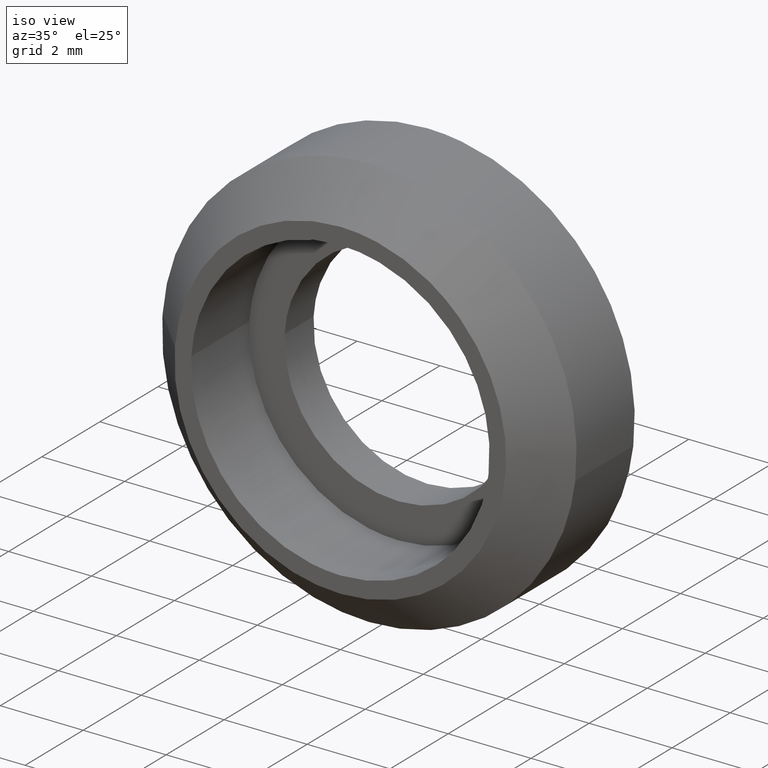
[diagram: clean part render]
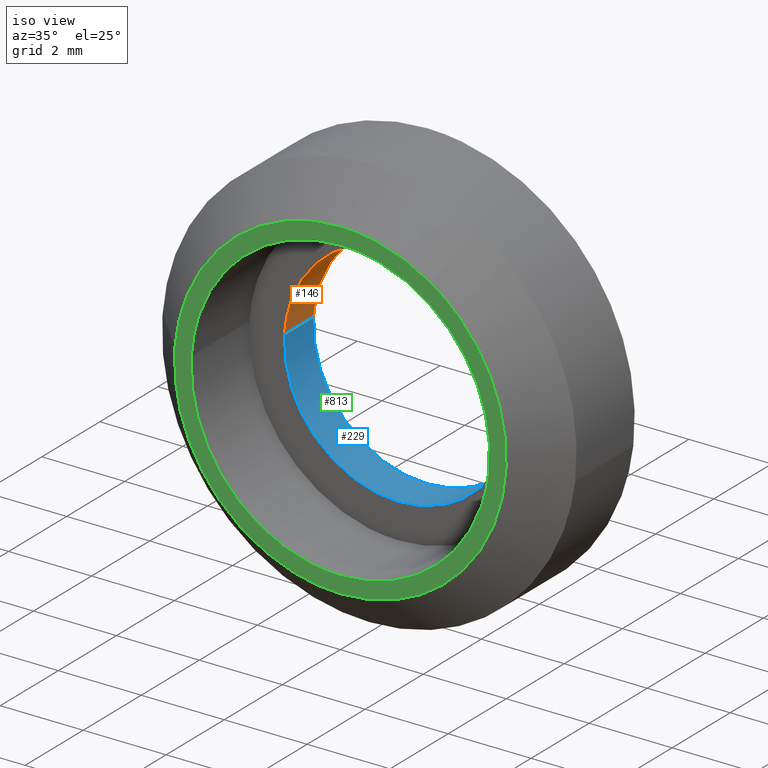
[diagram: same view with three faces highlighted in distinct colors, each labeled with its STEP entity id]
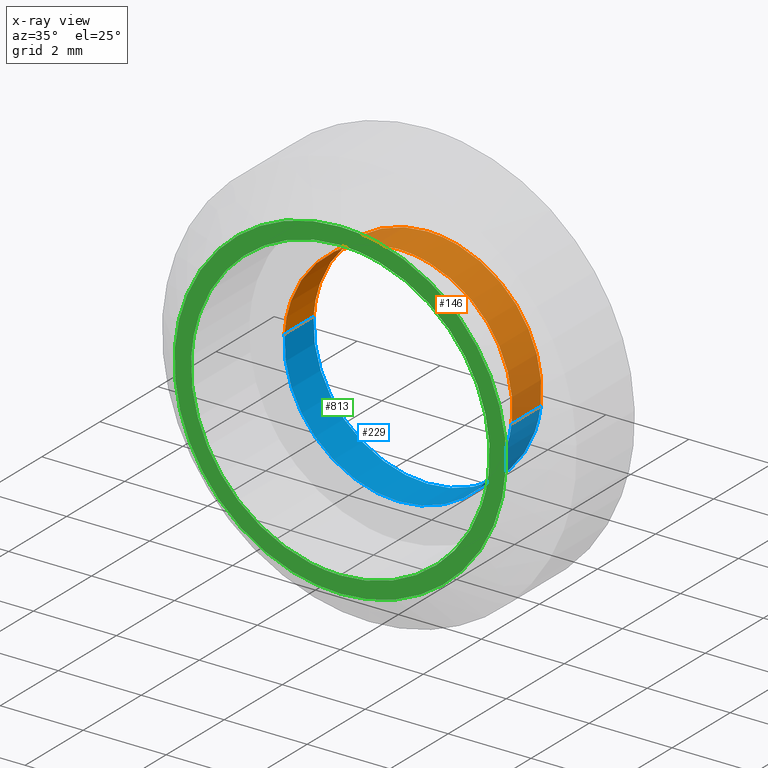
[diagram: x-ray of the same camera — body ghosted, the three highlighted faces saturated]
A machine part, iso view with three faces highlighted in distinct colors.
The next image is the same camera in x-ray (body ghosted, the three faces saturated) — at least one of them is partly hidden behind the body in this view.
Their STEP definitions:

[orange] entity #146 — the highlighted face is a freeform B-spline surface patch.
#44=CARTESIAN_POINT('',(2.730776197500084,1.025000000000000,-0.324594145306086));
#45=CARTESIAN_POINT('',(2.740065942483667,1.025000000000000,-0.246440503754439));
#46=CARTESIAN_POINT('',(2.744870695660134,1.025000000000000,-0.167883483720857));
#47=CARTESIAN_POINT('',(2.912754179380990,1.025000000000000,2.576987211939278));
#48=CARTESIAN_POINT('',(0.167883483720857,1.025000000000000,2.744870695660134));
#49=CARTESIAN_POINT('',(-2.576987211939278,1.025000000000000,2.912754179380990));
#50=CARTESIAN_POINT('',(-2.744870695660133,1.025000000000000,0.167883483720857));
#51=CARTESIAN_POINT('',(2.730776197500084,-0.025625000000000,-0.324594145306086));
#52=CARTESIAN_POINT('',(2.740065942483667,-0.025625000000000,-0.246440503754439));
#53=CARTESIAN_POINT('',(2.744870695660134,-0.025625000000000,-0.167883483720857));
#54=CARTESIAN_POINT('',(2.912754179380990,-0.025625000000000,2.576987211939278));
#55=CARTESIAN_POINT('',(0.167883483720857,-0.025625000000000,2.744870695660134));
#56=CARTESIAN_POINT('',(-2.576987211939278,-0.025625000000000,2.912754179380990));
#57=CARTESIAN_POINT('',(-2.744870695660133,-0.025625000000000,0.167883483720857));
#65=(BOUNDED_SURFACE()B_SPLINE_SURFACE(2,1,((#44,#51),(#45,#52),(#46,#53),(#47,#54),(#48,#55),(#49,#56),(#50,#57)),.UNSPECIFIED.,.F.,.F.,.U.)B_SPLINE_SURFACE_WITH_KNOTS((3,2,2,3),(2,2),(0.0,0.182253967444162,4.738603153548208,9.294952339652255),(0.0,1.0),.UNSPECIFIED.)GEOMETRIC_REPRESENTATION_ITEM()RATIONAL_B_SPLINE_SURFACE(((0.977505800795127,0.977505800795127),(0.988284271247462,0.988284271247462),(1.0,1.0),(0.707106781186548,0.707106781186548),(1.0,1.0),(0.707106781186548,0.707106781186548),(1.0,1.0)))REPRESENTATION_ITEM('')SURFACE());
#66=CARTESIAN_POINT('',(2.730776418423933,1.000000000000025,-0.324592286686328));
#67=VERTEX_POINT('',#66);
#68=CARTESIAN_POINT('',(4.898425E-016,1.0,2.750000000000000));
#69=VERTEX_POINT('',#68);
#70=CARTESIAN_POINT('',(2.730776418423933,1.000000000000025,-0.324592286686328));
#71=CARTESIAN_POINT('',(2.750000000000001,1.0,-0.162865389908423));
#72=CARTESIAN_POINT('',(2.750000000000000,1.0,0.0));
#73=CARTESIAN_POINT('',(2.750000000000000,1.0,2.750000000000000));
#74=CARTESIAN_POINT('',(4.898425E-016,1.0,2.750000000000000));
#82=(BOUNDED_CURVE()B_SPLINE_CURVE(2,(#70,#71,#72,#73,#74),.UNSPECIFIED.,.F.,.U.)B_SPLINE_CURVE_WITH_KNOTS((3,2,3),(0.229562588542570,0.250000000000000,0.500000000000000),.UNSPECIFIED.)CURVE()GEOMETRIC_REPRESENTATION_ITEM()RATIONAL_B_SPLINE_CURVE((0.956026979645492,0.976056083096074,1.0,0.707106781186548,1.0))REPRESENTATION_ITEM(''));
#83=EDGE_CURVE('',#67,#69,#82,.T.);
#84=ORIENTED_EDGE('',*,*,#83,.F.);
#85=CARTESIAN_POINT('',(2.730776415759834,5.323928E-018,-0.324592309099363));
#86=VERTEX_POINT('',#85);
#87=CARTESIAN_POINT('',(2.730776418423933,1.000000000000025,-0.324592286686328));
#88=CARTESIAN_POINT('',(2.730776415759834,5.323928E-018,-0.324592309099363));
#89=QUASI_UNIFORM_CURVE('',1,(#87,#88),.UNSPECIFIED.,.F.,.U.);
#90=EDGE_CURVE('',#67,#86,#89,.T.);
#91=ORIENTED_EDGE('',*,*,#90,.T.);
#92=CARTESIAN_POINT('',(4.898425E-016,0.0,2.750000000000000));
#93=VERTEX_POINT('',#92);
#94=CARTESIAN_POINT('',(2.730776415759835,5.323928E-018,-0.324592309099363));
#95=CARTESIAN_POINT('',(2.750000000000000,0.0,-0.162865401233412));
#96=CARTESIAN_POINT('',(2.750000000000000,0.0,0.0));
#97=CARTESIAN_POINT('',(2.750000000000000,0.0,2.750000000000000));
#98=CARTESIAN_POINT('',(4.898425E-016,0.0,2.750000000000000));
#106=(BOUNDED_CURVE()B_SPLINE_CURVE(2,(#94,#95,#96,#97,#98),.UNSPECIFIED.,.F.,.U.)B_SPLINE_CURVE_WITH_KNOTS((3,2,3),(0.229562587155464,0.250000000000000,0.500000000000000),.UNSPECIFIED.)CURVE()GEOMETRIC_REPRESENTATION_ITEM()RATIONAL_B_SPLINE_CURVE((0.956026976926705,0.976056081470978,1.0,0.707106781186548,1.0))REPRESENTATION_ITEM(''));
#107=EDGE_CURVE('',#86,#93,#106,.T.);
#108=ORIENTED_EDGE('',*,*,#107,.T.);
#109=CARTESIAN_POINT('',(-2.744870870186102,-5.204170E-017,0.167880630197805));
#110=VERTEX_POINT('',#109);
#111=CARTESIAN_POINT('',(4.898425E-016,0.0,2.750000000000000));
#112=CARTESIAN_POINT('',(-2.586944378359961,0.0,2.750000000000000));
#113=CARTESIAN_POINT('',(-2.744870870186103,-5.204170E-017,0.167880630197805));
#121=(BOUNDED_CURVE()B_SPLINE_CURVE(2,(#111,#112,#113),.UNSPECIFIED.,.F.,.U.)B_SPLINE_CURVE_WITH_KNOTS((3,3),(0.500000000000000,0.739333141618836),.UNSPECIFIED.)CURVE()GEOMETRIC_REPRESENTATION_ITEM()RATIONAL_B_SPLINE_CURVE((1.0,0.719603783130093,0.976072426112277))REPRESENTATION_ITEM(''));
#122=EDGE_CURVE('',#93,#110,#121,.T.);
#123=ORIENTED_EDGE('',*,*,#122,.T.);
#124=CARTESIAN_POINT('',(-2.744870872313038,0.999999999999963,0.167880595421523));
#125=VERTEX_POINT('',#124);
#126=CARTESIAN_POINT('',(-2.744870872313038,0.999999999999963,0.167880595421523));
#127=CARTESIAN_POINT('',(-2.744870870186102,-5.204170E-017,0.167880630197805));
#128=QUASI_UNIFORM_CURVE('',1,(#126,#127),.UNSPECIFIED.,.F.,.U.);
#129=EDGE_CURVE('',#125,#110,#128,.T.);
#130=ORIENTED_EDGE('',*,*,#129,.F.);
#131=CARTESIAN_POINT('',(4.898425E-016,1.0,2.750000000000000));
#132=CARTESIAN_POINT('',(-2.586944411196626,1.0,2.750000000000001));
#133=CARTESIAN_POINT('',(-2.744870872313038,0.999999999999963,0.167880595421523));
#141=(BOUNDED_CURVE()B_SPLINE_CURVE(2,(#131,#132,#133),.UNSPECIFIED.,.F.,.U.)B_SPLINE_CURVE_WITH_KNOTS((3,3),(0.500000000000000,0.739333143804927),.UNSPECIFIED.)CURVE()GEOMETRIC_REPRESENTATION_ITEM()RATIONAL_B_SPLINE_CURVE((1.0,0.719603780568928,0.976072430797494))REPRESENTATION_ITEM(''));
#142=EDGE_CURVE('',#69,#125,#141,.T.);
#143=ORIENTED_EDGE('',*,*,#142,.F.);
#144=EDGE_LOOP('',(#84,#91,#108,#123,#130,#143));
#145=FACE_OUTER_BOUND('',#144,.T.);
#146=ADVANCED_FACE('',(#145),#65,.F.);

[blue] entity #229 — the highlighted face is a freeform B-spline surface patch.
#66=CARTESIAN_POINT('',(2.730776418423933,1.000000000000025,-0.324592286686328));
#67=VERTEX_POINT('',#66);
#85=CARTESIAN_POINT('',(2.730776415759834,5.323928E-018,-0.324592309099363));
#86=VERTEX_POINT('',#85);
#87=CARTESIAN_POINT('',(2.730776418423933,1.000000000000025,-0.324592286686328));
#88=CARTESIAN_POINT('',(2.730776415759834,5.323928E-018,-0.324592309099363));
#89=QUASI_UNIFORM_CURVE('',1,(#87,#88),.UNSPECIFIED.,.F.,.U.);
#90=EDGE_CURVE('',#67,#86,#89,.T.);
#109=CARTESIAN_POINT('',(-2.744870870186102,-5.204170E-017,0.167880630197805));
#110=VERTEX_POINT('',#109);
#124=CARTESIAN_POINT('',(-2.744870872313038,0.999999999999963,0.167880595421523));
#125=VERTEX_POINT('',#124);
#126=CARTESIAN_POINT('',(-2.744870872313038,0.999999999999963,0.167880595421523));
#127=CARTESIAN_POINT('',(-2.744870870186102,-5.204170E-017,0.167880630197805));
#128=QUASI_UNIFORM_CURVE('',1,(#126,#127),.UNSPECIFIED.,.F.,.U.);
#129=EDGE_CURVE('',#125,#110,#128,.T.);
#147=CARTESIAN_POINT('',(-2.744870695660133,1.025000000000000,0.167883483720857));
#148=CARTESIAN_POINT('',(-2.912754179380989,1.025000000000000,-2.576987211939278));
#149=CARTESIAN_POINT('',(-0.167883483720856,1.025000000000000,-2.744870695660134));
#150=CARTESIAN_POINT('',(2.424244599808629,1.025000000000000,-2.903412041014450));
#151=CARTESIAN_POINT('',(2.730776197500084,1.025000000000000,-0.324594145306086));
#152=CARTESIAN_POINT('',(-2.744870695660133,-0.025625000000000,0.167883483720857));
#153=CARTESIAN_POINT('',(-2.912754179380989,-0.025625000000000,-2.576987211939278));
#154=CARTESIAN_POINT('',(-0.167883483720856,-0.025625000000000,-2.744870695660134));
#155=CARTESIAN_POINT('',(2.424244599808629,-0.025625000000000,-2.903412041014450));
#156=CARTESIAN_POINT('',(2.730776197500084,-0.025625000000000,-0.324594145306086));
#164=(BOUNDED_SURFACE()B_SPLINE_SURFACE(2,1,((#147,#152),(#148,#153),(#149,#154),(#150,#155),(#151,#156)),.UNSPECIFIED.,.F.,.F.,.U.)B_SPLINE_SURFACE_WITH_KNOTS((3,2,3),(2,2),(0.0,4.556349186104045,8.930444404763927),(0.0,1.0),.UNSPECIFIED.)GEOMETRIC_REPRESENTATION_ITEM()RATIONAL_B_SPLINE_SURFACE(((1.0,1.0),(0.707106781186548,0.707106781186548),(1.0,1.0),(0.718822509939086,0.718822509939086),(0.977505800795127,0.977505800795127)))REPRESENTATION_ITEM('')SURFACE());
#165=CARTESIAN_POINT('',(4.898425E-016,1.0,-2.750000000000000));
#166=VERTEX_POINT('',#165);
#167=CARTESIAN_POINT('',(4.898425E-016,1.0,-2.750000000000000));
#168=CARTESIAN_POINT('',(2.442481620469085,1.0,-2.750000000000000));
#169=CARTESIAN_POINT('',(2.730776418423933,1.000000000000025,-0.324592286686328));
#177=(BOUNDED_CURVE()B_SPLINE_CURVE(2,(#167,#168,#169),.UNSPECIFIED.,.F.,.U.)B_SPLINE_CURVE_WITH_KNOTS((3,3),(0.0,0.229562588542570),.UNSPECIFIED.)CURVE()GEOMETRIC_REPRESENTATION_ITEM()RATIONAL_B_SPLINE_CURVE((1.0,0.731050698090474,0.956026979645492))REPRESENTATION_ITEM(''));
#178=EDGE_CURVE('',#166,#67,#177,.T.);
#179=ORIENTED_EDGE('',*,*,#178,.F.);
#180=CARTESIAN_POINT('',(-2.744870872313038,0.999999999999963,0.167880595421523));
#181=CARTESIAN_POINT('',(-2.750000000000000,1.0,0.084018650872314));
#182=CARTESIAN_POINT('',(-2.750000000000000,1.0,0.0));
#183=CARTESIAN_POINT('',(-2.749999999999999,1.0,-2.750000000000000));
#184=CARTESIAN_POINT('',(4.898425E-016,1.0,-2.750000000000000));
#192=(BOUNDED_CURVE()B_SPLINE_CURVE(2,(#180,#181,#182,#183,#184),.UNSPECIFIED.,.F.,.U.)B_SPLINE_CURVE_WITH_KNOTS((3,2,3),(0.739333143804927,0.750000000000000,1.0),.UNSPECIFIED.)CURVE()GEOMETRIC_REPRESENTATION_ITEM()RATIONAL_B_SPLINE_CURVE((0.976072430797494,0.987503000617620,1.0,0.707106781186548,1.0))REPRESENTATION_ITEM(''));
#193=EDGE_CURVE('',#125,#166,#192,.T.);
#194=ORIENTED_EDGE('',*,*,#193,.F.);
#195=ORIENTED_EDGE('',*,*,#129,.T.);
#196=CARTESIAN_POINT('',(4.898425E-016,0.0,-2.750000000000000));
#197=VERTEX_POINT('',#196);
#198=CARTESIAN_POINT('',(-2.744870870186103,-5.204170E-017,0.167880630197805));
#199=CARTESIAN_POINT('',(-2.749999999999999,0.0,0.084018668309206));
#200=CARTESIAN_POINT('',(-2.750000000000000,0.0,0.0));
#201=CARTESIAN_POINT('',(-2.749999999999999,0.0,-2.750000000000000));
#202=CARTESIAN_POINT('',(4.898425E-016,0.0,-2.750000000000000));
#210=(BOUNDED_CURVE()B_SPLINE_CURVE(2,(#198,#199,#200,#201,#202),.UNSPECIFIED.,.F.,.U.)B_SPLINE_CURVE_WITH_KNOTS((3,2,3),(0.739333141618836,0.750000000000000,1.0),.UNSPECIFIED.)CURVE()GEOMETRIC_REPRESENTATION_ITEM()RATIONAL_B_SPLINE_CURVE((0.976072426112277,0.987502998056455,1.0,0.707106781186548,1.0))REPRESENTATION_ITEM(''));
#211=EDGE_CURVE('',#110,#197,#210,.T.);
#212=ORIENTED_EDGE('',*,*,#211,.T.);
#213=CARTESIAN_POINT('',(4.898425E-016,0.0,-2.750000000000000));
#214=CARTESIAN_POINT('',(2.442481600281129,0.0,-2.750000000000000));
#215=CARTESIAN_POINT('',(2.730776415759835,5.323928E-018,-0.324592309099363));
#223=(BOUNDED_CURVE()B_SPLINE_CURVE(2,(#213,#214,#215),.UNSPECIFIED.,.F.,.U.)B_SPLINE_CURVE_WITH_KNOTS((3,3),(0.0,0.229562587155464),.UNSPECIFIED.)CURVE()GEOMETRIC_REPRESENTATION_ITEM()RATIONAL_B_SPLINE_CURVE((1.0,0.731050699715569,0.956026976926705))REPRESENTATION_ITEM(''));
#224=EDGE_CURVE('',#197,#86,#223,.T.);
#225=ORIENTED_EDGE('',*,*,#224,.T.);
#226=ORIENTED_EDGE('',*,*,#90,.F.);
#227=EDGE_LOOP('',(#179,#194,#195,#212,#225,#226));
#228=FACE_OUTER_BOUND('',#227,.T.);
#229=ADVANCED_FACE('',(#228),#164,.F.);

[green] entity #813 — the highlighted face is a freeform B-spline surface patch.
#271=CARTESIAN_POINT('',(3.574834406155133,-2.0,-0.424922308861975));
#272=VERTEX_POINT('',#271);
#278=CARTESIAN_POINT('',(4.898425E-016,-2.0,3.600000000000000));
#279=VERTEX_POINT('',#278);
#280=CARTESIAN_POINT('',(3.574834406155132,-2.000000000000000,-0.424922308861975));
#281=CARTESIAN_POINT('',(3.600000000000001,-2.000000000000000,-0.213205884950325));
#282=CARTESIAN_POINT('',(3.600000000000001,-2.0,0.0));
#283=CARTESIAN_POINT('',(3.600000000000000,-2.0,3.600000000000000));
#284=CARTESIAN_POINT('',(4.898425E-016,-2.0,3.600000000000000));
#292=(BOUNDED_CURVE()B_SPLINE_CURVE(2,(#280,#281,#282,#283,#284),.UNSPECIFIED.,.F.,.U.)B_SPLINE_CURVE_WITH_KNOTS((3,2,3),(0.229562562006767,0.250000000000000,0.500000000000000),.UNSPECIFIED.)CURVE()GEOMETRIC_REPRESENTATION_ITEM()RATIONAL_B_SPLINE_CURVE((0.956026927634180,0.976056052007446,1.0,0.707106781186547,1.0))REPRESENTATION_ITEM(''));
#293=EDGE_CURVE('',#272,#279,#292,.T.);
#295=CARTESIAN_POINT('',(-3.593285493808216,-2.0,0.219771153645120));
#296=VERTEX_POINT('',#295);
#297=CARTESIAN_POINT('',(4.898425E-016,-2.0,3.600000000000000));
#298=CARTESIAN_POINT('',(-3.386545229384042,-2.000000000000000,3.600000000000000));
#299=CARTESIAN_POINT('',(-3.593285493808216,-1.999999999999999,0.219771153645120));
#307=(BOUNDED_CURVE()B_SPLINE_CURVE(2,(#297,#298,#299),.UNSPECIFIED.,.F.,.U.)B_SPLINE_CURVE_WITH_KNOTS((3,3),(0.500000000000000,0.739333134567656),.UNSPECIFIED.)CURVE()GEOMETRIC_REPRESENTATION_ITEM()RATIONAL_B_SPLINE_CURVE((1.0,0.719603791391064,0.976072411000232))REPRESENTATION_ITEM(''));
#308=EDGE_CURVE('',#279,#296,#307,.T.);
#382=CARTESIAN_POINT('',(4.898425E-016,-2.0,-3.600000000000000));
#383=VERTEX_POINT('',#382);
#384=CARTESIAN_POINT('',(-3.593285493808216,-1.999999999999999,0.219771153645120));
#385=CARTESIAN_POINT('',(-3.600000000000000,-2.000000000000000,0.109988148503720));
#386=CARTESIAN_POINT('',(-3.600000000000000,-2.0,0.0));
#387=CARTESIAN_POINT('',(-3.600000000000000,-2.0,-3.600000000000000));
#388=CARTESIAN_POINT('',(4.898425E-016,-2.0,-3.600000000000000));
#396=(BOUNDED_CURVE()B_SPLINE_CURVE(2,(#384,#385,#386,#387,#388),.UNSPECIFIED.,.F.,.U.)B_SPLINE_CURVE_WITH_KNOTS((3,2,3),(0.739333134567656,0.750000000000000,1.0),.UNSPECIFIED.)CURVE()GEOMETRIC_REPRESENTATION_ITEM()RATIONAL_B_SPLINE_CURVE((0.976072411000232,0.987502989795483,1.0,0.707106781186547,1.0))REPRESENTATION_ITEM(''));
#397=EDGE_CURVE('',#296,#383,#396,.T.);
#399=CARTESIAN_POINT('',(4.898425E-016,-2.0,-3.600000000000000));
#400=CARTESIAN_POINT('',(3.197429979403713,-2.0,-3.600000000000001));
#401=CARTESIAN_POINT('',(3.574834406155132,-2.000000000000000,-0.424922308861975));
#409=(BOUNDED_CURVE()B_SPLINE_CURVE(2,(#399,#400,#401),.UNSPECIFIED.,.F.,.U.)B_SPLINE_CURVE_WITH_KNOTS((3,3),(0.0,0.229562562006767),.UNSPECIFIED.)CURVE()GEOMETRIC_REPRESENTATION_ITEM()RATIONAL_B_SPLINE_CURVE((1.0,0.731050729179102,0.956026927634180))REPRESENTATION_ITEM(''));
#410=EDGE_CURVE('',#383,#272,#409,.T.);
#457=CARTESIAN_POINT('',(2.151403173784936,-1.999999999999992,3.372160195457528));
#458=VERTEX_POINT('',#457);
#464=CARTESIAN_POINT('',(4.898425E-016,-2.0,-4.0));
#465=VERTEX_POINT('',#464);
#466=CARTESIAN_POINT('',(4.898425E-016,-2.0,-4.0));
#467=CARTESIAN_POINT('',(4.000000000000001,-2.000000000000000,-4.000000000000000));
#468=CARTESIAN_POINT('',(4.000000000000001,-2.0,0.0));
#469=CARTESIAN_POINT('',(4.000000000000001,-2.000000000000000,2.192774624058669));
#470=CARTESIAN_POINT('',(2.151403173784936,-1.999999999999992,3.372160195457528));
#478=(BOUNDED_CURVE()B_SPLINE_CURVE(2,(#466,#467,#468,#469,#470),.UNSPECIFIED.,.F.,.U.)B_SPLINE_CURVE_WITH_KNOTS((3,2,3),(0.0,0.250000000000000,0.407950112627559),.UNSPECIFIED.)CURVE()GEOMETRIC_REPRESENTATION_ITEM()RATIONAL_B_SPLINE_CURVE((1.0,0.707106781186548,1.0,0.814949932402267,0.863729296954929))REPRESENTATION_ITEM(''));
#479=EDGE_CURVE('',#465,#458,#478,.T.);
#481=CARTESIAN_POINT('',(-3.987669334932839,-1.999999999999178,0.313836382917689));
#482=VERTEX_POINT('',#481);
#483=CARTESIAN_POINT('',(-3.987669334932839,-1.999999999999178,0.313836382917689));
#484=CARTESIAN_POINT('',(-3.999999999999999,-2.000000000000000,0.157160428036951));
#485=CARTESIAN_POINT('',(-3.999999999999999,-2.0,0.0));
#486=CARTESIAN_POINT('',(-4.000000000000000,-2.000000000000000,-4.000000000000000));
#487=CARTESIAN_POINT('',(4.898425E-016,-2.0,-4.0));
#495=(BOUNDED_CURVE()B_SPLINE_CURVE(2,(#483,#484,#485,#486,#487),.UNSPECIFIED.,.F.,.U.)B_SPLINE_CURVE_WITH_KNOTS((3,2,3),(0.736331300632230,0.750000000000000,1.0),.UNSPECIFIED.)CURVE()GEOMETRIC_REPRESENTATION_ITEM()RATIONAL_B_SPLINE_CURVE((0.969723356170695,0.983986122580722,1.0,0.707106781186548,1.0))REPRESENTATION_ITEM(''));
#496=EDGE_CURVE('',#482,#465,#495,.T.);
#600=CARTESIAN_POINT('',(4.898425E-016,-2.0,4.0));
#601=VERTEX_POINT('',#600);
#602=CARTESIAN_POINT('',(4.898425E-016,-2.0,4.0));
#603=CARTESIAN_POINT('',(-3.697561966621231,-2.000000000000000,4.000000000000001));
#604=CARTESIAN_POINT('',(-3.987669334932839,-1.999999999999178,0.313836382917689));
#612=(BOUNDED_CURVE()B_SPLINE_CURVE(2,(#602,#603,#604),.UNSPECIFIED.,.F.,.U.)B_SPLINE_CURVE_WITH_KNOTS((3,3),(0.500000000000000,0.736331300632231),.UNSPECIFIED.)CURVE()GEOMETRIC_REPRESENTATION_ITEM()RATIONAL_B_SPLINE_CURVE((1.0,0.723120658605825,0.969723356170697))REPRESENTATION_ITEM(''));
#613=EDGE_CURVE('',#601,#482,#612,.T.);
#615=CARTESIAN_POINT('',(2.151403173784936,-1.999999999999992,3.372160195457528));
#616=CARTESIAN_POINT('',(1.167312221517213,-2.000000000000000,4.000000000000001));
#617=CARTESIAN_POINT('',(4.898425E-016,-2.0,4.0));
#625=(BOUNDED_CURVE()B_SPLINE_CURVE(2,(#615,#616,#617),.UNSPECIFIED.,.F.,.U.)B_SPLINE_CURVE_WITH_KNOTS((3,3),(0.407950112627559,0.500000000000000),.UNSPECIFIED.)CURVE()GEOMETRIC_REPRESENTATION_ITEM()RATIONAL_B_SPLINE_CURVE((0.863729296954929,0.892156848784280,1.0))REPRESENTATION_ITEM(''));
#626=EDGE_CURVE('',#458,#601,#625,.T.);
#796=CARTESIAN_POINT('',(-4.398363919812439,-2.0,-4.399599984494448));
#797=CARTESIAN_POINT('',(-4.398363919812439,-2.0,4.399600199071169));
#798=CARTESIAN_POINT('',(4.398062010365726,-2.0,-4.399599984494448));
#799=CARTESIAN_POINT('',(4.398062010365726,-2.0,4.399600199071169));
#800=B_SPLINE_SURFACE_WITH_KNOTS('',1,1,((#796,#798),(#797,#799)),.UNSPECIFIED.,.F.,.F.,.U.,(2,2),(2,2),(0.0,8.799200183565617),(0.0,8.796425930178163),.UNSPECIFIED.);
#801=ORIENTED_EDGE('',*,*,#479,.T.);
#802=ORIENTED_EDGE('',*,*,#626,.T.);
#803=ORIENTED_EDGE('',*,*,#613,.T.);
#804=ORIENTED_EDGE('',*,*,#496,.T.);
#805=EDGE_LOOP('',(#801,#802,#803,#804));
#806=FACE_OUTER_BOUND('',#805,.T.);
#807=ORIENTED_EDGE('',*,*,#308,.F.);
#808=ORIENTED_EDGE('',*,*,#293,.F.);
#809=ORIENTED_EDGE('',*,*,#410,.F.);
#810=ORIENTED_EDGE('',*,*,#397,.F.);
#811=EDGE_LOOP('',(#807,#808,#809,#810));
#812=FACE_BOUND('',#811,.T.);
#813=ADVANCED_FACE('',(#806,#812),#800,.F.);